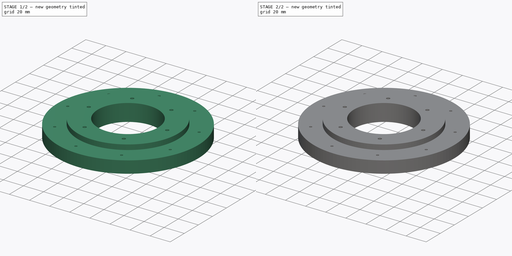
[diagram: build sequence overview — one tinted view per stage of 2, left to right]
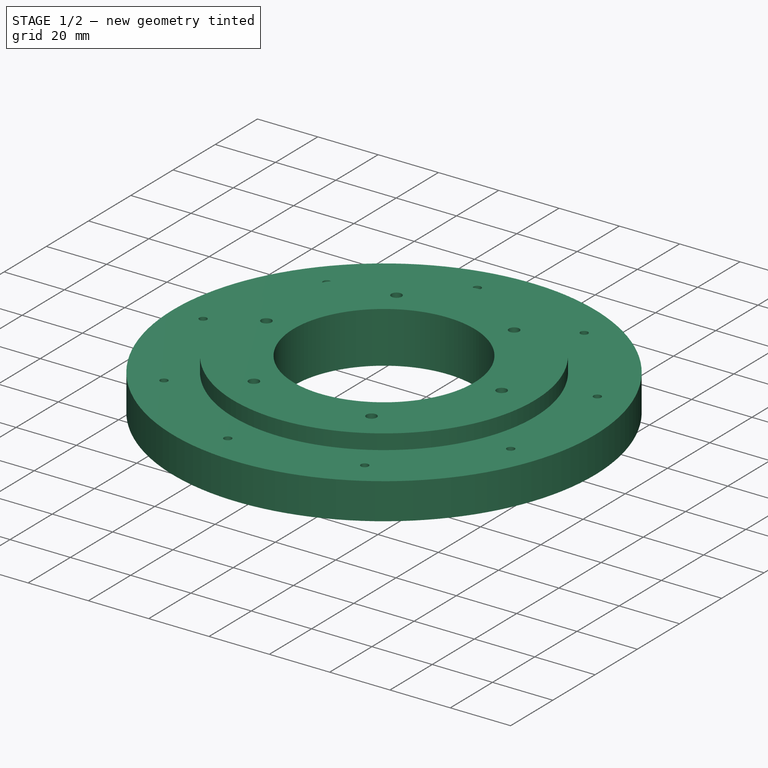
[diagram: stage 1 of 2 — iso view after this stage's code; geometry added in this stage tinted green]
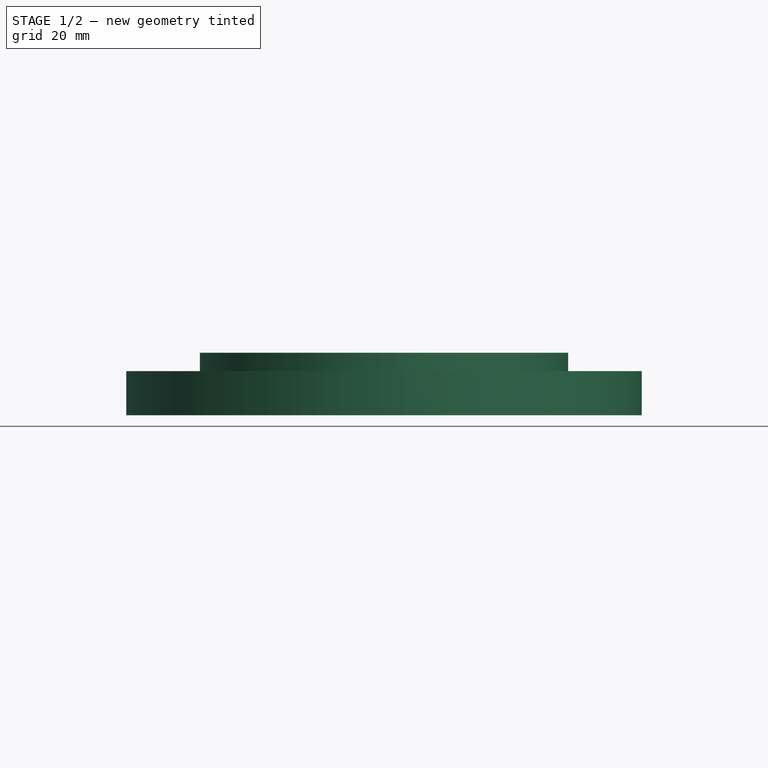
[diagram: stage 1 of 2 — front view after this stage's code; geometry added in this stage tinted green]
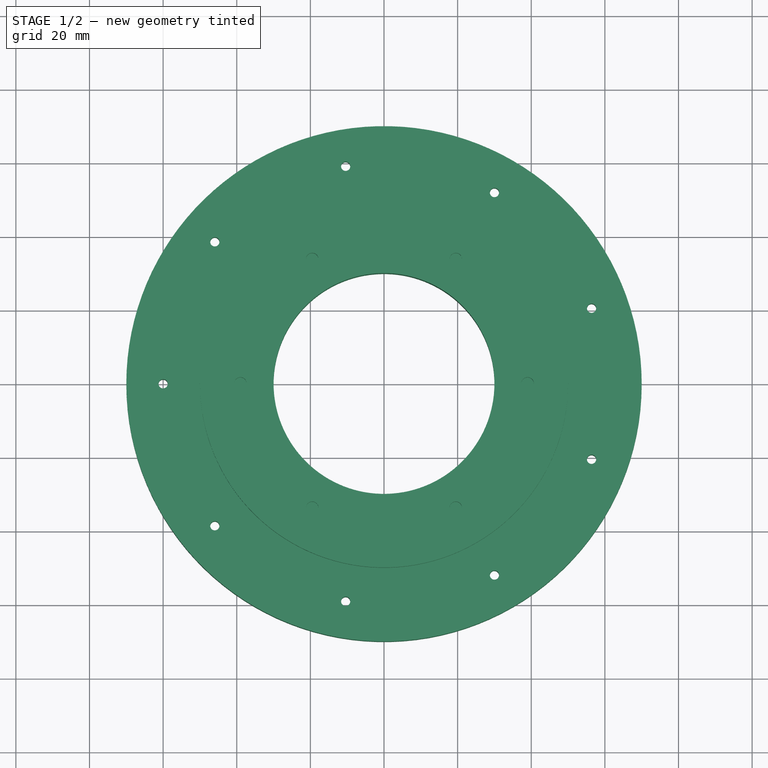
[diagram: stage 1 of 2 — top view after this stage's code; geometry added in this stage tinted green]
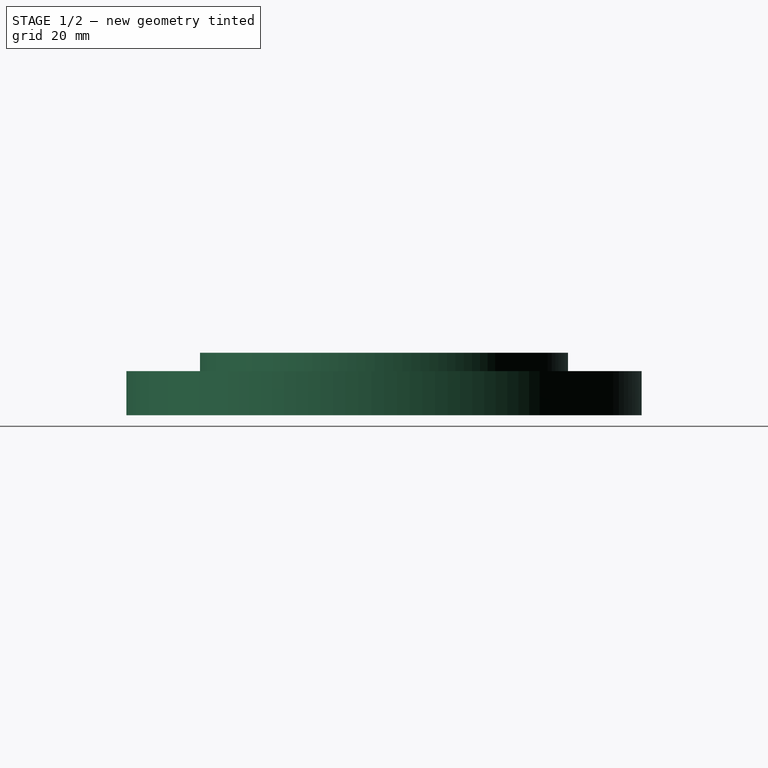
[diagram: stage 1 of 2 — right view after this stage's code; geometry added in this stage tinted green]
FCSTD DOCUMENT  (FreeCAD 0.20R29410 (Git))
Label: wheel_gear_outer_fixation
License: All rights reserved
LicenseURL: http://en.wikipedia.org/wiki/All_rights_reserved
objects: Sketcher::SketchObject×3, PartDesign::Pad×2, PartDesign::Pocket×1, PartDesign::Body×1
note: 10 computed .brp shape members not serialized (recipe doc carries the construction recipe); baked Part::Feature solids carry a one-line shape summary decoded from their .brp

FEATURE [Sketcher::SketchObject] Sketch
  FullyConstrained = true
  sketch-geometry (21):
    g0: Circle CenterX=0 CenterY=0 CenterZ=0 NormalX=0 NormalY=0 NormalZ=1 AngleXU=0 Radius=70
    g1: Circle CenterX=0 CenterY=0 CenterZ=0 NormalX=0 NormalY=0 NormalZ=1 AngleXU=0 Radius=30
    g2: LineSegment StartX=56.3816 StartY=-20.5212 StartZ=0 EndX=56.3816 EndY=20.5212 EndZ=0
    g3: LineSegment StartX=56.3816 StartY=20.5212 StartZ=0 EndX=30 EndY=51.9615 EndZ=0
    g4: LineSegment StartX=30 StartY=51.9615 StartZ=0 EndX=-10.4189 EndY=59.0885 EndZ=0
    g5: LineSegment StartX=-10.4189 StartY=59.0885 StartZ=0 EndX=-45.9627 EndY=38.5673 EndZ=0
    g6: LineSegment StartX=-45.9627 StartY=38.5673 StartZ=0 EndX=-60 EndY=0 EndZ=0
    g7: LineSegment StartX=-60 StartY=0 StartZ=0 EndX=-45.9627 EndY=-38.5673 EndZ=0
    g8: LineSegment StartX=-45.9627 StartY=-38.5673 StartZ=0 EndX=-10.4189 EndY=-59.0885 EndZ=0
    g9: LineSegment StartX=-10.4189 StartY=-59.0885 StartZ=0 EndX=30 EndY=-51.9615 EndZ=0
    g10: LineSegment StartX=30 StartY=-51.9615 StartZ=0 EndX=56.3816 EndY=-20.5212 EndZ=0
    g11: Circle CenterX=0 CenterY=0 CenterZ=0 NormalX=0 NormalY=0 NormalZ=1 AngleXU=0 Radius=60
    g12: Circle CenterX=-60 CenterY=0 CenterZ=0 NormalX=0 NormalY=0 NormalZ=1 AngleXU=0 Radius=1.25
    g13: Circle CenterX=-45.9627 CenterY=38.5673 CenterZ=0 NormalX=0 NormalY=0 NormalZ=1 AngleXU=0 Radius=1.25
    g14: Circle CenterX=-45.9627 CenterY=-38.5673 CenterZ=0 NormalX=0 NormalY=0 NormalZ=1 AngleXU=0 Radius=1.25
    g15: Circle CenterX=-10.4189 CenterY=-59.0885 CenterZ=0 NormalX=0 NormalY=0 NormalZ=1 AngleXU=0 Radius=1.25
    g16: Circle CenterX=30 CenterY=-51.9615 CenterZ=0 NormalX=0 NormalY=0 NormalZ=1 AngleXU=0 Radius=1.25
    g17: Circle CenterX=56.3816 CenterY=-20.5212 CenterZ=0 NormalX=0 NormalY=0 NormalZ=1 AngleXU=0 Radius=1.25
    g18: Circle CenterX=56.3816 CenterY=20.5212 CenterZ=0 NormalX=0 NormalY=0 NormalZ=1 AngleXU=0 Radius=1.25
    g19: Circle CenterX=30 CenterY=51.9615 CenterZ=0 NormalX=0 NormalY=0 NormalZ=1 AngleXU=0 Radius=1.25
    g20: Circle CenterX=-10.4189 CenterY=59.0885 CenterZ=0 NormalX=0 NormalY=0 NormalZ=1 AngleXU=0 Radius=1.25
  constraints (44):
    c: Coincident(g1,g-1)
    c: Coincident(g0,g1)
    c: Coincident(g2,g3)
    c: Coincident(g3,g4)
    c: Coincident(g4,g5)
    c: Coincident(g5,g6)
    c: Coincident(g6,g7)
    c: Coincident(g7,g8)
    c: Coincident(g8,g9)
    c: Coincident(g9,g10)
    c: Coincident(g10,g2)
    c: Equal(g2, g3-g10) x8
    c: PointOnObject(g2,g11)
    c: PointOnObject(g3,g11)
    c: PointOnObject(g4,g11)
    c: PointOnObject(g5,g11)
    c: PointOnObject(g6,g11)
    c: PointOnObject(g7,g11)
    c: PointOnObject(g8,g11)
    c: PointOnObject(g9,g11)
    c: PointOnObject(g10,g11)
    c: Coincident(g11,g0)
    c: Diameter(g19) = 2.5
    c: Diameter(g18) = 2.5
    c: Coincident(g13,g5)
    c: Coincident(g12,g6)
    c: Coincident(g19,g3)
    c: Coincident(g20,g4)
    c: Coincident(g18,g2)
    c: Coincident(g17,g2)
    c: Coincident(g16,g9)
    c: Coincident(g15,g8)
    c: Coincident(g14,g7)
    c: Diameter(g17) = 2.5
    c: Diameter(g16) = 2.5
    c: Diameter(g13) = 2.5
    c: Diameter(g12) = 2.5
    c: Diameter(g14) = 2.5
    c: Diameter(g15) = 2.5
    c: Radius(g11) = 60
    c: Radius(g0) = 70
    c: Radius(g1) = 30
    c: DistanceY(g0,g12) = 0
    c: Diameter(g20) = 2.5
FEATURE [PartDesign::Pad] Pad
  Direction = (0,0,1)
  Length = 12
  Length2 = 10
  Profile = -> Sketch
  ReferenceAxis = -> Sketch [N_Axis]
  Type = 0
FEATURE [Sketcher::SketchObject] Sketch001
  FullyConstrained = true
  MapMode = 5
  Placement = pos=(0,0,12) rot=(0,0,1;0rad)
  Support = -> [Pad]
  sketch-geometry (15):
    g0: Circle CenterX=0 CenterY=0 CenterZ=0 NormalX=0 NormalY=0 NormalZ=1 AngleXU=0 Radius=30
    g1: Circle CenterX=0 CenterY=0 CenterZ=0 NormalX=0 NormalY=0 NormalZ=1 AngleXU=0 Radius=50
    g2: LineSegment StartX=19.5 StartY=-33.775 StartZ=0 EndX=39 EndY=0 EndZ=0
    g3: LineSegment StartX=39 StartY=0 StartZ=0 EndX=19.5 EndY=33.775 EndZ=0
    g4: LineSegment StartX=19.5 StartY=33.775 StartZ=0 EndX=-19.5 EndY=33.775 EndZ=0
    g5: LineSegment StartX=-19.5 StartY=33.775 StartZ=0 EndX=-39 EndY=7.1e-15 EndZ=0
    g6: LineSegment StartX=-39 StartY=7.1e-15 StartZ=0 EndX=-19.5 EndY=-33.775 EndZ=0
    g7: LineSegment StartX=-19.5 StartY=-33.775 StartZ=0 EndX=19.5 EndY=-33.775 EndZ=0
    g8: Circle CenterX=0 CenterY=0 CenterZ=0 NormalX=0 NormalY=0 NormalZ=1 AngleXU=0 Radius=39
    g9: Circle CenterX=-19.5 CenterY=33.775 CenterZ=0 NormalX=0 NormalY=0 NormalZ=1 AngleXU=0 Radius=1.7
    g10: Circle CenterX=19.5 CenterY=33.775 CenterZ=0 NormalX=0 NormalY=0 NormalZ=1 AngleXU=0 Radius=1.7
    g11: Circle CenterX=39 CenterY=0 CenterZ=0 NormalX=0 NormalY=0 NormalZ=1 AngleXU=0 Radius=1.7
    g12: Circle CenterX=-39 CenterY=7.1e-15 CenterZ=0 NormalX=0 NormalY=0 NormalZ=1 AngleXU=0 Radius=1.7
    g13: Circle CenterX=-19.5 CenterY=-33.775 CenterZ=0 NormalX=0 NormalY=0 NormalZ=1 AngleXU=0 Radius=1.7
    g14: Circle CenterX=19.5 CenterY=-33.775 CenterZ=0 NormalX=0 NormalY=0 NormalZ=1 AngleXU=0 Radius=1.7
  constraints (32):
    c: Radius(g0) = 30
    c: Radius(g1) = 50
    c: Coincident(g1,g-1)
    c: Coincident(g1,g0)
    c: Coincident(g2,g3)
    c: Coincident(g3,g4)
    c: Coincident(g4,g5)
    c: Coincident(g5,g6)
    c: Coincident(g6,g7)
    c: Coincident(g7,g2)
    c: Equal(g2, g3-g7) x5
    c: PointOnObject(g2,g8)
    c: PointOnObject(g3,g8)
    c: PointOnObject(g4,g8)
    c: PointOnObject(g5,g8)
    c: PointOnObject(g6,g8)
    c: PointOnObject(g7,g8)
    c: Radius(g8) = 39
    c: Coincident(g8,g0)
    c: Coincident(g9,g4)
    c: Coincident(g12,g5)
    c: Coincident(g13,g6)
    c: Coincident(g14,g2)
    c: Coincident(g11,g2)
    c: Coincident(g10,g3)
    c: Radius(g9) = 1.7
    c: Radius(g12) = 1.7
    c: Radius(g10) = 1.7
    c: Radius(g11) = 1.7
    c: Radius(g14) = 1.7
    c: Radius(g13) = 1.7
    c: DistanceY(g11,g0) = 0
FEATURE [PartDesign::Pad] Pad001
  BaseFeature = -> Pad
  Direction = (0,0,1)
  Length = 5
  Length2 = 10
  Profile = -> Sketch001
  ReferenceAxis = -> Sketch001 [N_Axis]
  Type = 0
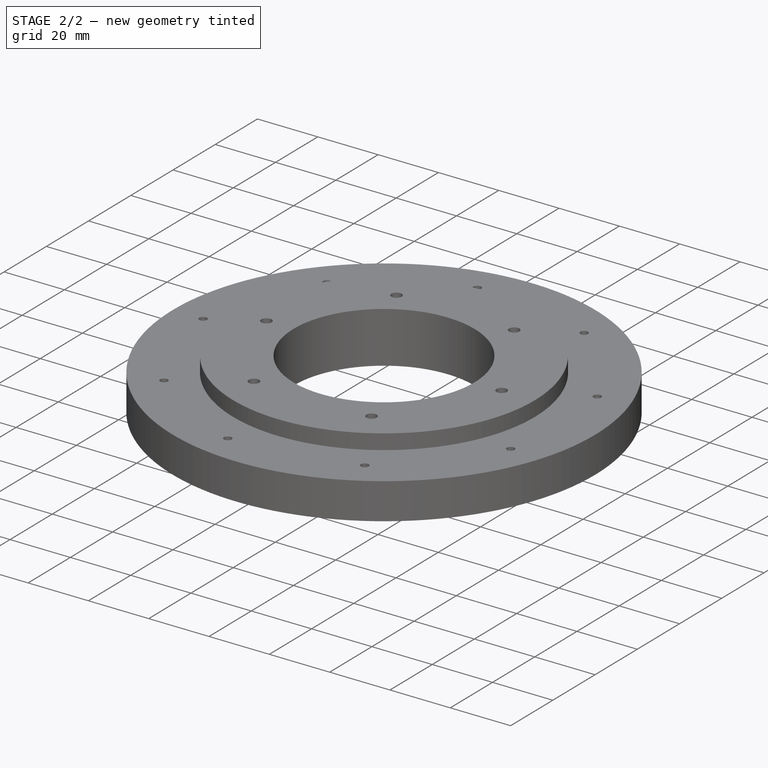
[diagram: stage 2 of 2 — iso view after this stage's code; geometry added in this stage tinted green]
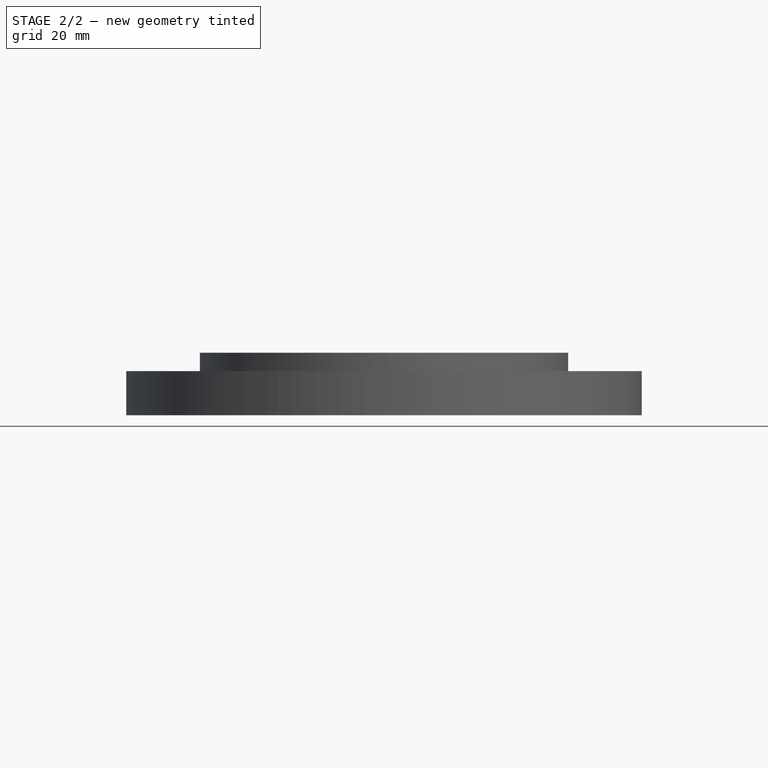
[diagram: stage 2 of 2 — front view after this stage's code; geometry added in this stage tinted green]
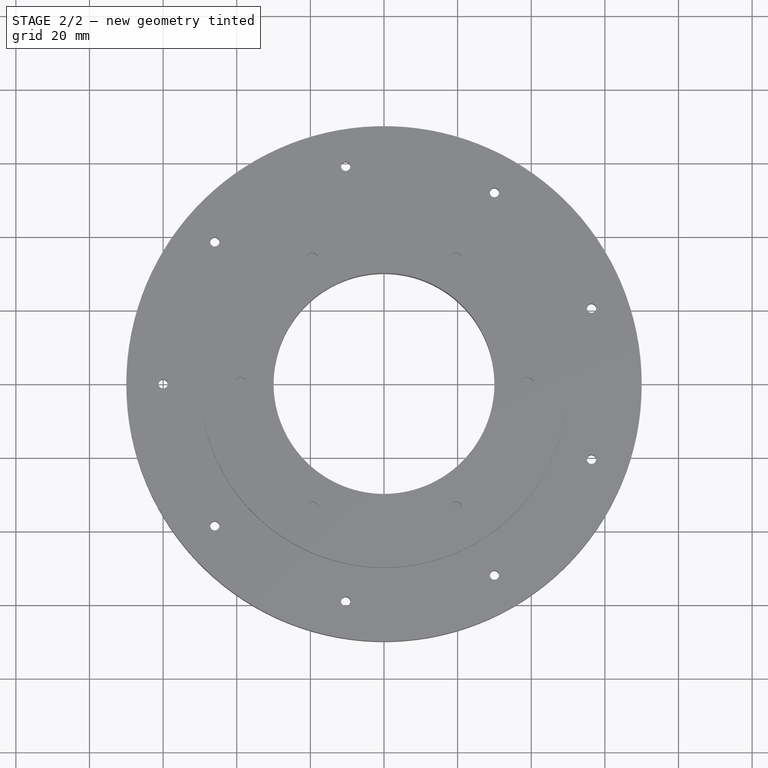
[diagram: stage 2 of 2 — top view after this stage's code; geometry added in this stage tinted green]
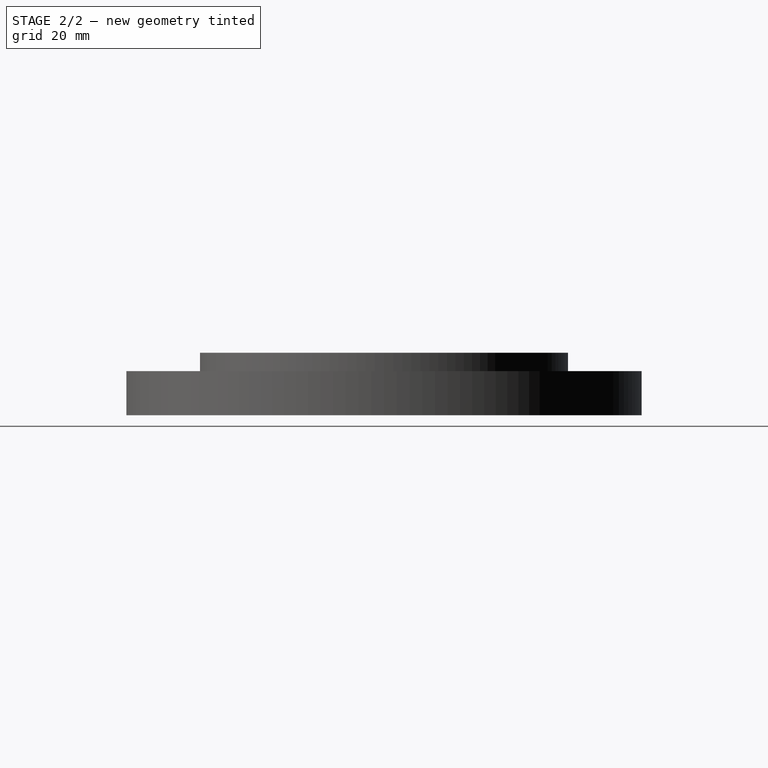
[diagram: stage 2 of 2 — right view after this stage's code; geometry added in this stage tinted green]
FEATURE [Sketcher::SketchObject] Sketch003
  FullyConstrained = false
  MapMode = 5
  Placement = pos=(0,0,10) rot=(0,0,1;0rad)
  sketch-geometry (13):
    g0: LineSegment StartX=19.5 StartY=-33.775 StartZ=0 EndX=39 EndY=0 EndZ=0
    g1: LineSegment StartX=39 StartY=0 StartZ=0 EndX=19.5 EndY=33.775 EndZ=0
    g2: LineSegment StartX=19.5 StartY=33.775 StartZ=0 EndX=-19.5 EndY=33.775 EndZ=0
    g3: LineSegment StartX=-19.5 StartY=33.775 StartZ=0 EndX=-39 EndY=7.1e-15 EndZ=0
    g4: LineSegment StartX=-39 StartY=7.1e-15 StartZ=0 EndX=-19.5 EndY=-33.775 EndZ=0
    g5: LineSegment StartX=-19.5 StartY=-33.775 StartZ=0 EndX=19.5 EndY=-33.775 EndZ=0
    g6: Circle CenterX=0 CenterY=0 CenterZ=0 NormalX=0 NormalY=0 NormalZ=1 AngleXU=0 Radius=39
    g7: Circle CenterX=-19.5 CenterY=33.775 CenterZ=0 NormalX=0 NormalY=0 NormalZ=1 AngleXU=0 Radius=1.7
    g8: Circle CenterX=19.5 CenterY=33.775 CenterZ=0 NormalX=0 NormalY=0 NormalZ=1 AngleXU=0 Radius=1.7
    g9: Circle CenterX=39 CenterY=0 CenterZ=0 NormalX=0 NormalY=0 NormalZ=1 AngleXU=0 Radius=1.7
    g10: Circle CenterX=-39 CenterY=7.1e-15 CenterZ=0 NormalX=0 NormalY=0 NormalZ=1 AngleXU=0 Radius=1.7
    g11: Circle CenterX=-19.5 CenterY=-33.775 CenterZ=0 NormalX=0 NormalY=0 NormalZ=1 AngleXU=0 Radius=1.7
    g12: Circle CenterX=19.5 CenterY=-33.775 CenterZ=0 NormalX=0 NormalY=0 NormalZ=1 AngleXU=0 Radius=1.7
  constraints (26):
    c: Coincident(g0,g1)
    c: Coincident(g1,g2)
    c: Coincident(g2,g3)
    c: Coincident(g3,g4)
    c: Coincident(g4,g5)
    c: Coincident(g5,g0)
    c: Equal(g0, g1-g5) x5
    c: PointOnObject(g0,g6)
    c: PointOnObject(g1,g6)
    c: PointOnObject(g2,g6)
    c: PointOnObject(g3,g6)
    c: PointOnObject(g4,g6)
    c: PointOnObject(g5,g6)
    c: Radius(g6) = 39
    c: Coincident(g7,g2)
    c: Coincident(g10,g3)
    c: Coincident(g11,g4)
    c: Coincident(g12,g0)
    c: Coincident(g9,g0)
    c: Coincident(g8,g1)
    c: Radius(g7) = 1.7
    c: Radius(g10) = 1.7
    c: Radius(g8) = 1.7
    c: Radius(g9) = 1.7
    c: Radius(g12) = 1.7
    c: Radius(g11) = 1.7
FEATURE [PartDesign::Pocket] Pocket
  BaseFeature = -> Pad001
  Direction = (0,0,-1)
  Length = 5
  Length2 = 5
  Profile = -> Sketch003
  ReferenceAxis = -> Sketch003 [N_Axis]
  Type = 1
FEATURE [PartDesign::Body] Body
  Group = -> [Sketch,Pad,Sketch001,Pad001,Sketch003,Pocket]
  Origin = -> Origin
  Tip = -> Pocket
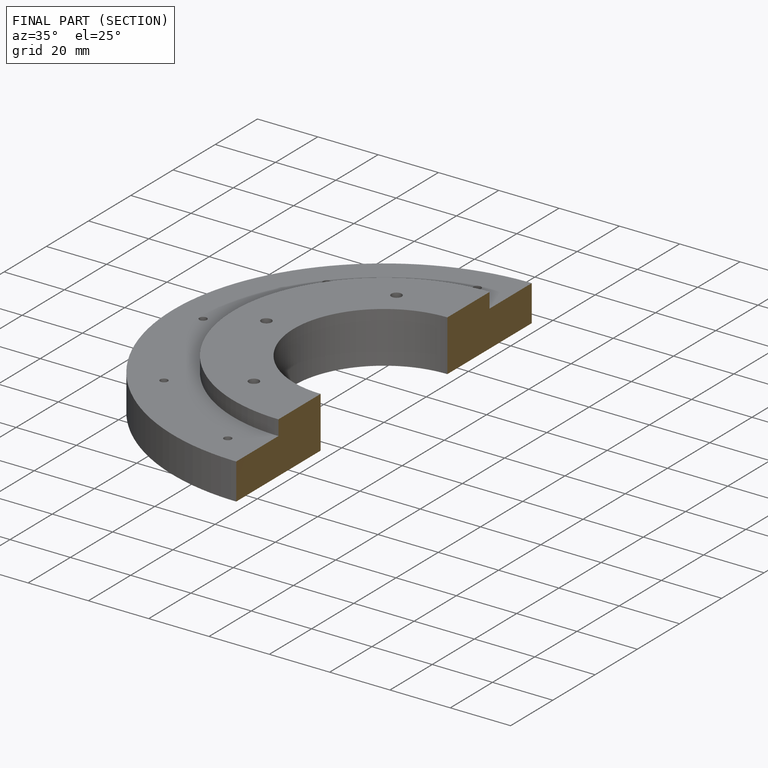
[diagram: finished part — half-section view (interior)]
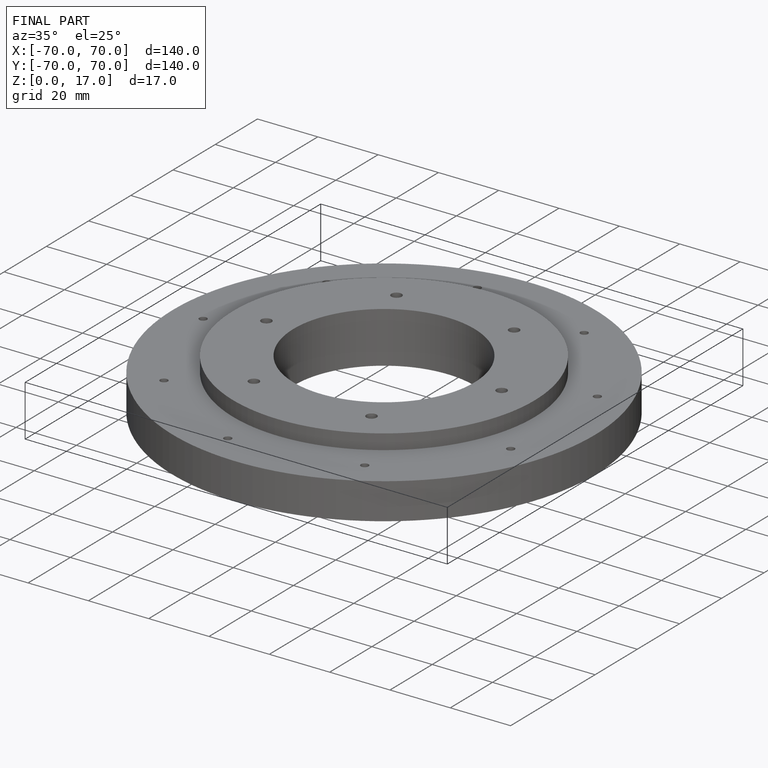
[diagram: finished part — iso view with bounding-box wireframe]
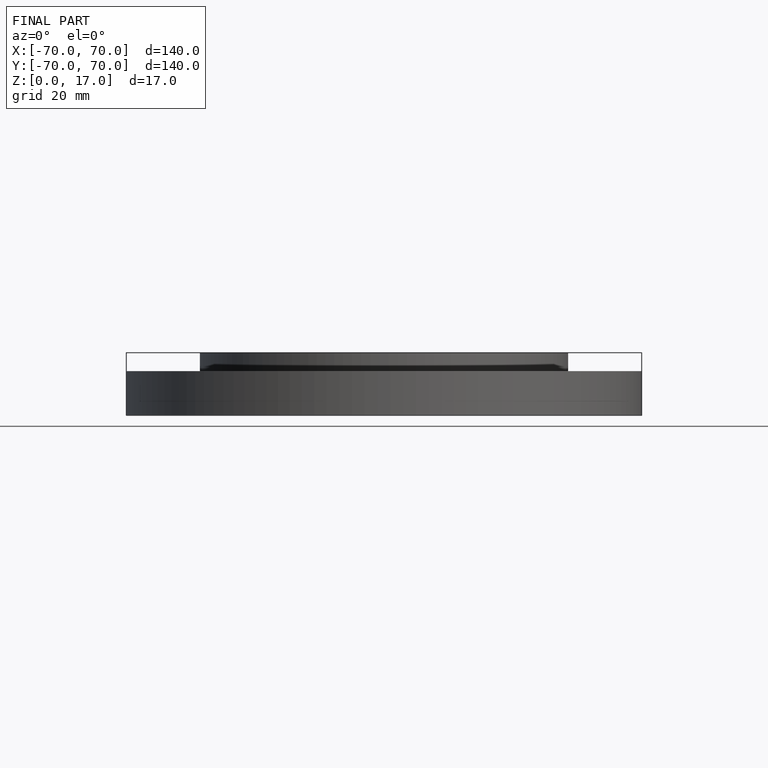
[diagram: finished part — front view with bounding-box wireframe]
